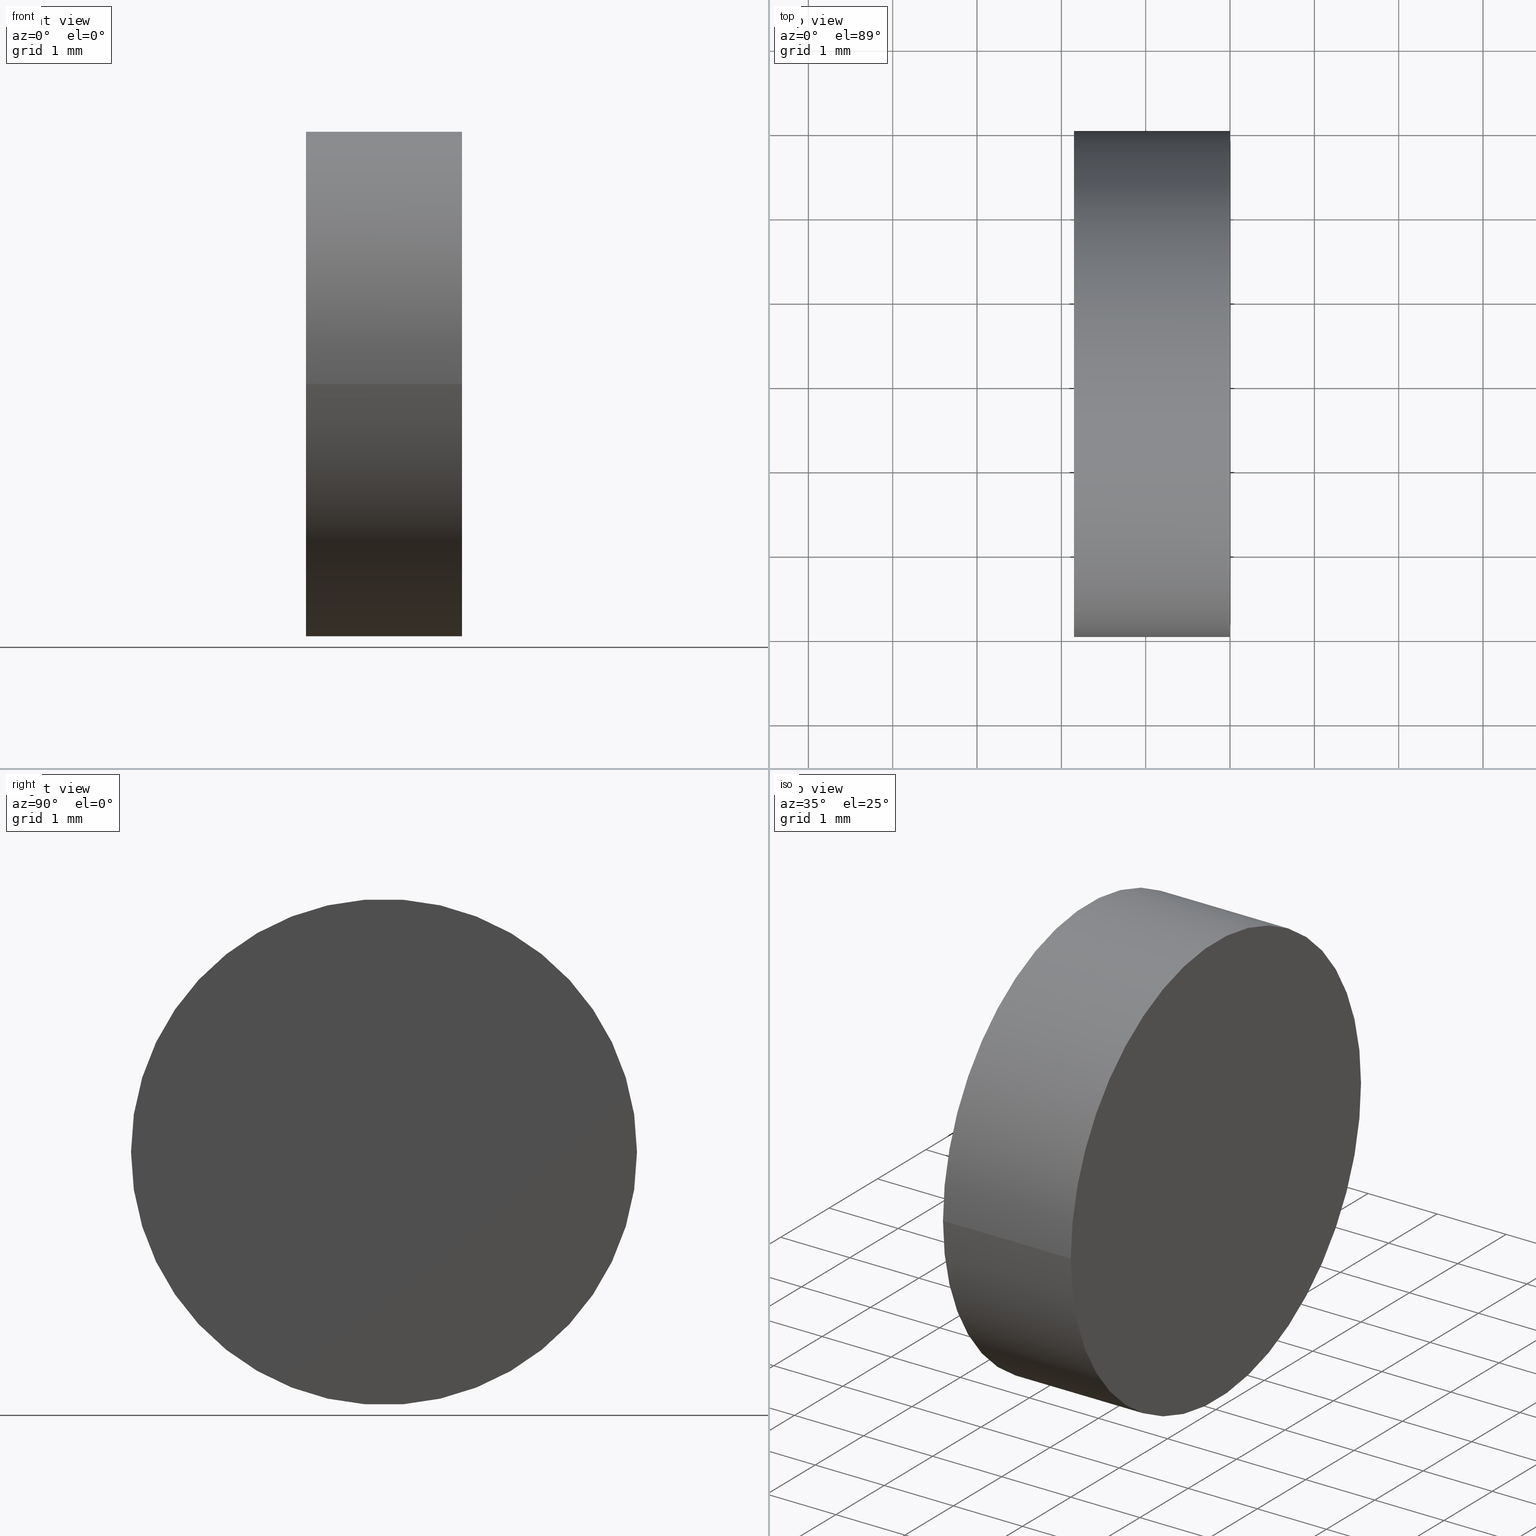
[diagram: canonical four-view strip — front | top / right | iso, engineering-drawing reading convention]
A machine part, canonical four-view strip (front | top / right | iso — engineering-drawing reading convention). The complete STEP part file that produces these views, byte-faithful:
ISO-10303-21;
HEADER;
FILE_DESCRIPTION (( 'STEP AP203' ),
    '1' );
FILE_NAME ('120351.STEP',
    '2024-05-10T06:28:03',
    ( '' ),
    ( '' ),
    'SwSTEP 2.0',
    'SolidWorks 2020',
    '' );
FILE_SCHEMA (( 'CONFIG_CONTROL_DESIGN' ));
ENDSEC;

DATA;
#1 = VERTEX_POINT ( 'NONE', #48 ) ;
#2 = CLOSED_SHELL ( 'NONE', ( #173, #61, #82, #21, #43 ) ) ;
#3 = CARTESIAN_POINT ( 'NONE',  ( -2.128896578136521379E-16, 3.000000000000000000, 0.000000000000000000 ) ) ;
#4 = CC_DESIGN_SECURITY_CLASSIFICATION ( #81, ( #175 ) ) ;
#5 = CARTESIAN_POINT ( 'NONE',  ( -14.40999213444168880, -1.765216662077961907E-15, 0.000000000000000000 ) ) ;
#6 = DESIGN_CONTEXT ( 'detailed design', #116, 'design' ) ;
#7 = CARTESIAN_POINT ( 'NONE',  ( -1.849999999999999645, -2.265596578422602607E-16, 0.000000000000000000 ) ) ;
#8 = EDGE_CURVE ( 'NONE', #113, #15, #107, .T. ) ;
#9 = CC_DESIGN_PERSON_AND_ORGANIZATION_ASSIGNMENT ( #179, #10, ( #192 ) ) ;
#10 = PERSON_AND_ORGANIZATION_ROLE ( 'creator' ) ;
#11 = DIRECTION ( 'NONE',  ( -1.445602896647338917E-16, 1.000000000000000000, 0.000000000000000000 ) ) ;
#12 = APPROVAL_DATE_TIME ( #166, #151 ) ;
#13 = ORIENTED_EDGE ( 'NONE', *, *, #60, .F. ) ;
#14 = AXIS2_PLACEMENT_3D ( 'NONE', #7, #177, #11 ) ;
#15 = VERTEX_POINT ( 'NONE', #97 ) ;
#16 = AXIS2_PLACEMENT_3D ( 'NONE', #187, #172, #169 ) ;
#17 = DIRECTION ( 'NONE',  ( 1.000000000000000000, 1.224646799147352961E-16, -0.000000000000000000 ) ) ;
#18 = ORIENTED_EDGE ( 'NONE', *, *, #137, .T. ) ;
#19 = CARTESIAN_POINT ( 'NONE',  ( -1.849999999999999201, -3.000000000000001776, 3.673940397442061840E-16 ) ) ;
#20 = PERSON_AND_ORGANIZATION ( #24, #132 ) ;
#21 = ADVANCED_FACE ( 'NONE', ( #170 ), #93, .T. ) ;
#22 = AXIS2_PLACEMENT_3D ( 'NONE', #186, #17, #109 ) ;
#23 = LOCAL_TIME ( 14, 28, 3.000000000000000000, #41 ) ;
#24 = PERSON ( 'δָ��', 'δָ��', 'δָ��', ('δָ��'), ('δָ��'), ('δָ��') ) ;
#25 = AXIS2_PLACEMENT_3D ( 'NONE', #37, #85, #58 ) ;
#26 = DATE_AND_TIME ( #73, #195 ) ;
#27 = ORIENTED_EDGE ( 'NONE', *, *, #84, .T. ) ;
#28 = DIRECTION ( 'NONE',  ( 1.000000000000000000, 1.224646799147352961E-16, -0.000000000000000000 ) ) ;
#29 = DIRECTION ( 'NONE',  ( 1.000000000000000000, 1.224646799147352961E-16, -0.000000000000000000 ) ) ;
#30 = DIRECTION ( 'NONE',  ( -1.224646799147352961E-16, 1.000000000000000000, 0.000000000000000000 ) ) ;
#31 = UNCERTAINTY_MEASURE_WITH_UNIT (LENGTH_MEASURE( 1.000000000000000082E-05 ), #144, 'distance_accuracy_value', 'NONE');
#32 = ORIENTED_EDGE ( 'NONE', *, *, #150, .F. ) ;
#33 = CC_DESIGN_APPROVAL ( #44, ( #192 ) ) ;
#34 = DATE_AND_TIME ( #72, #167 ) ;
#35 = APPROVAL_PERSON_ORGANIZATION ( #88, #44, #163 ) ;
#36 = PRODUCT ( '120351', '120351', '', ( #55 ) ) ;
#37 = CARTESIAN_POINT ( 'NONE',  ( 0.000000000000000000, 0.000000000000000000, 0.000000000000000000 ) ) ;
#38 = APPROVAL_ROLE ( '' ) ;
#39 = EDGE_LOOP ( 'NONE', ( #32, #79, #127 ) ) ;
#40 = APPROVAL_PERSON_ORGANIZATION ( #121, #174, #38 ) ;
#41 = COORDINATED_UNIVERSAL_TIME_OFFSET ( 8, 0, .AHEAD. ) ;
#42 = APPROVAL_STATUS ( 'not_yet_approved' ) ;
#43 = ADVANCED_FACE ( 'NONE', ( #65 ), #168, .T. ) ;
#44 = APPROVAL ( #117, 'δָ��' ) ;
#45 = DIRECTION ( 'NONE',  ( -1.224646799147352961E-16, 1.000000000000000000, 0.000000000000000000 ) ) ;
#46 = MANIFOLD_SOLID_BREP ( '��ת1', #2 ) ;
#47 = CARTESIAN_POINT ( 'NONE',  ( 0.000000000000000000, 0.000000000000000000, 0.000000000000000000 ) ) ;
#48 = CARTESIAN_POINT ( 'NONE',  ( 6.764028036053134381E-16, -3.000000000000000000, 3.673940397442059868E-16 ) ) ;
#49 = DIRECTION ( 'NONE',  ( -1.445602896647338917E-16, 1.000000000000000000, 0.000000000000000000 ) ) ;
#50 = CARTESIAN_POINT ( 'NONE',  ( 3.673940397442059375E-16, -3.000000000000000000, 3.673940397442059868E-16 ) ) ;
#51 = CIRCLE ( 'NONE', #154, 12.91000000000000547 ) ;
#52 = CALENDAR_DATE ( 2024, 10, 5 ) ;
#53 = CC_DESIGN_APPROVAL ( #174, ( #175 ) ) ;
#54 = CIRCLE ( 'NONE', #14, 3.000000000000000444 ) ;
#55 = MECHANICAL_CONTEXT ( 'NONE', #103, 'mechanical' ) ;
#56 = DATE_TIME_ROLE ( 'creation_date' ) ;
#57 = ORIENTED_EDGE ( 'NONE', *, *, #150, .T. ) ;
#58 = DIRECTION ( 'NONE',  ( -1.224646799147353207E-16, 1.000000000000000000, 0.000000000000000000 ) ) ;
#59 = AXIS2_PLACEMENT_3D ( 'NONE', #5, #188, #95 ) ;
#60 = EDGE_CURVE ( 'NONE', #77, #1, #185, .T. ) ;
#61 = ADVANCED_FACE ( 'NONE', ( #153 ), #128, .F. ) ;
#62 = CARTESIAN_POINT ( 'NONE',  ( -1.849999999999999645, -2.265596578422602607E-16, 0.000000000000000000 ) ) ;
#63 = EDGE_LOOP ( 'NONE', ( #141, #67 ) ) ;
#64 = ORIENTED_EDGE ( 'NONE', *, *, #118, .F. ) ;
#65 = FACE_OUTER_BOUND ( 'NONE', #63, .T. ) ;
#66 = LOCAL_TIME ( 14, 28, 3.000000000000000000, #87 ) ;
#67 = ORIENTED_EDGE ( 'NONE', *, *, #118, .T. ) ;
#68 = PRODUCT_RELATED_PRODUCT_CATEGORY ( 'detail', '', ( #36 ) ) ;
#69 = APPLICATION_PROTOCOL_DEFINITION ( 'international standard', 'config_control_design', 1994, #116 ) ;
#70 = AXIS2_PLACEMENT_3D ( 'NONE', #94, #158, #129 ) ;
#71 =( NAMED_UNIT ( * ) SI_UNIT ( $, .STERADIAN. ) SOLID_ANGLE_UNIT ( ) );
#72 = CALENDAR_DATE ( 2024, 10, 5 ) ;
#73 = CALENDAR_DATE ( 2024, 10, 5 ) ;
#74 = LOCAL_TIME ( 14, 28, 3.000000000000000000, #124 ) ;
#75 = CC_DESIGN_PERSON_AND_ORGANIZATION_ASSIGNMENT ( #200, #123, ( #81 ) ) ;
#76 = SHAPE_DEFINITION_REPRESENTATION ( #178, #183 ) ;
#77 = VERTEX_POINT ( 'NONE', #155 ) ;
#78 = FACE_OUTER_BOUND ( 'NONE', #39, .T. ) ;
#79 = ORIENTED_EDGE ( 'NONE', *, *, #84, .F. ) ;
#80 = CARTESIAN_POINT ( 'NONE',  ( -3.673940397442059375E-16, 3.000000000000000000, 0.000000000000000000 ) ) ;
#81 = SECURITY_CLASSIFICATION ( '', '', #149 ) ;
#82 = ADVANCED_FACE ( 'NONE', ( #78 ), #145, .F. ) ;
#83 = CARTESIAN_POINT ( 'NONE',  ( -14.40999213444168880, -1.765216662077961907E-15, 0.000000000000000000 ) ) ;
#84 = EDGE_CURVE ( 'NONE', #113, #201, #199, .T. ) ;
#85 = DIRECTION ( 'NONE',  ( 1.000000000000000000, 1.224646799147352961E-16, -0.000000000000000000 ) ) ;
#86 = AXIS2_PLACEMENT_3D ( 'NONE', #83, #140, #45 ) ;
#87 = COORDINATED_UNIVERSAL_TIME_OFFSET ( 8, 0, .AHEAD. ) ;
#88 = PERSON_AND_ORGANIZATION ( #24, #132 ) ;
#89 = DIRECTION ( 'NONE',  ( 1.000000000000000000, 1.224646799147352961E-16, -0.000000000000000000 ) ) ;
#90 = PERSON_AND_ORGANIZATION ( #24, #132 ) ;
#91 = APPROVAL_PERSON_ORGANIZATION ( #92, #151, #184 ) ;
#92 = PERSON_AND_ORGANIZATION ( #24, #132 ) ;
#93 = CYLINDRICAL_SURFACE ( 'NONE', #176, 3.000000000000000000 ) ;
#94 = CARTESIAN_POINT ( 'NONE',  ( 3.090087638611075992E-16, 3.784265935709856587E-32, 0.000000000000000000 ) ) ;
#95 = DIRECTION ( 'NONE',  ( -1.224646799147352961E-16, 1.000000000000000000, 0.000000000000000000 ) ) ;
#96 = LINE ( 'NONE', #80, #136 ) ;
#97 = CARTESIAN_POINT ( 'NONE',  ( -1.500000000000000000, -1.836970198721029688E-16, 0.000000000000000000 ) ) ;
#98 = PERSON_AND_ORGANIZATION_ROLE ( 'design_supplier' ) ;
#99 = CIRCLE ( 'NONE', #22, 3.000000000000000000 ) ;
#100 = CARTESIAN_POINT ( 'NONE',  ( 0.000000000000000000, 0.000000000000000000, 0.000000000000000000 ) ) ;
#101 = EDGE_CURVE ( 'NONE', #201, #1, #111, .T. ) ;
#102 = CC_DESIGN_PERSON_AND_ORGANIZATION_ASSIGNMENT ( #20, #120, ( #36 ) ) ;
#103 = APPLICATION_CONTEXT ( 'configuration controlled 3d designs of mechanical parts and assemblies' ) ;
#104 = CARTESIAN_POINT ( 'NONE',  ( -14.40999213444168880, -0.01425091764847305140, 1.745234068311288492E-18 ) ) ;
#105 = CC_DESIGN_APPROVAL ( #151, ( #81 ) ) ;
#106 = APPROVAL_DATE_TIME ( #131, #174 ) ;
#107 = CIRCLE ( 'NONE', #16, 12.91000000000000725 ) ;
#108 = CALENDAR_DATE ( 2024, 10, 5 ) ;
#109 = DIRECTION ( 'NONE',  ( -1.224646799147353207E-16, 1.000000000000000000, 0.000000000000000000 ) ) ;
#110 = EDGE_LOOP ( 'NONE', ( #27, #181, #13, #139 ) ) ;
#111 = LINE ( 'NONE', #50, #193 ) ;
#112 = CC_DESIGN_PERSON_AND_ORGANIZATION_ASSIGNMENT ( #115, #98, ( #175 ) ) ;
#113 = VERTEX_POINT ( 'NONE', #171 ) ;
#114 = AXIS2_PLACEMENT_3D ( 'NONE', #62, #189, #49 ) ;
#115 = PERSON_AND_ORGANIZATION ( #24, #132 ) ;
#116 = APPLICATION_CONTEXT ( 'configuration controlled 3d designs of mechanical parts and assemblies' ) ;
#117 = APPROVAL_STATUS ( 'not_yet_approved' ) ;
#118 = EDGE_CURVE ( 'NONE', #1, #77, #99, .T. ) ;
#119 = CC_DESIGN_PERSON_AND_ORGANIZATION_ASSIGNMENT ( #90, #194, ( #175 ) ) ;
#120 = PERSON_AND_ORGANIZATION_ROLE ( 'design_owner' ) ;
#121 = PERSON_AND_ORGANIZATION ( #24, #132 ) ;
#122 = CALENDAR_DATE ( 2024, 10, 5 ) ;
#123 = PERSON_AND_ORGANIZATION_ROLE ( 'classification_officer' ) ;
#124 = COORDINATED_UNIVERSAL_TIME_OFFSET ( 8, 0, .AHEAD. ) ;
#125 = DIRECTION ( 'NONE',  ( 1.000000000000000000, 1.224646799147352961E-16, -0.000000000000000000 ) ) ;
#126 = AXIS2_PLACEMENT_3D ( 'NONE', #100, #146, #162 ) ;
#127 = ORIENTED_EDGE ( 'NONE', *, *, #8, .T. ) ;
#128 = TOROIDAL_SURFACE ( 'NONE', #86, 0.01425091764847128718, 12.91000000000000547 ) ;
#129 = DIRECTION ( 'NONE',  ( -1.224646799147353207E-16, 1.000000000000000000, 0.000000000000000000 ) ) ;
#130 = EDGE_LOOP ( 'NONE', ( #143, #57, #190 ) ) ;
#131 = DATE_AND_TIME ( #52, #23 ) ;
#132 = ORGANIZATION ( 'δָ��', 'δָ��', '' ) ;
#133 =( NAMED_UNIT ( * ) PLANE_ANGLE_UNIT ( ) SI_UNIT ( $, .RADIAN. ) );
#134 = COORDINATED_UNIVERSAL_TIME_OFFSET ( 8, 0, .AHEAD. ) ;
#135 = DATE_TIME_ROLE ( 'classification_date' ) ;
#136 = VECTOR ( 'NONE', #89, 1000.000000000000000 ) ;
#137 = EDGE_CURVE ( 'NONE', #113, #77, #96, .T. ) ;
#138 = CC_DESIGN_DATE_AND_TIME_ASSIGNMENT ( #26, #135, ( #81 ) ) ;
#139 = ORIENTED_EDGE ( 'NONE', *, *, #137, .F. ) ;
#140 = DIRECTION ( 'NONE',  ( 1.000000000000000000, 1.224646799147352961E-16, -0.000000000000000000 ) ) ;
#141 = ORIENTED_EDGE ( 'NONE', *, *, #60, .T. ) ;
#142 = ORIENTED_EDGE ( 'NONE', *, *, #191, .T. ) ;
#143 = ORIENTED_EDGE ( 'NONE', *, *, #191, .F. ) ;
#144 =( LENGTH_UNIT ( ) NAMED_UNIT ( * ) SI_UNIT ( .MILLI., .METRE. ) );
#145 = TOROIDAL_SURFACE ( 'NONE', #59, 0.01425091764847128718, 12.91000000000000547 ) ;
#146 = DIRECTION ( 'NONE',  ( 0.000000000000000000, 0.000000000000000000, 1.000000000000000000 ) ) ;
#147 = DIRECTION ( 'NONE',  ( -1.499759782661857334E-32, 1.224646799147353207E-16, 1.000000000000000000 ) ) ;
#148 = COORDINATED_UNIVERSAL_TIME_OFFSET ( 8, 0, .AHEAD. ) ;
#149 = SECURITY_CLASSIFICATION_LEVEL ( 'unclassified' ) ;
#150 = EDGE_CURVE ( 'NONE', #201, #15, #51, .T. ) ;
#151 = APPROVAL ( #42, 'δָ��' ) ;
#152 = ORIENTED_EDGE ( 'NONE', *, *, #101, .F. ) ;
#153 = FACE_OUTER_BOUND ( 'NONE', #130, .T. ) ;
#154 = AXIS2_PLACEMENT_3D ( 'NONE', #104, #147, #165 ) ;
#155 = CARTESIAN_POINT ( 'NONE',  ( -5.838527588309833832E-17, 3.000000000000000000, 0.000000000000000000 ) ) ;
#156 = DIRECTION ( 'NONE',  ( -1.224646799147353207E-16, 1.000000000000000000, 0.000000000000000000 ) ) ;
#157 = AXIS2_PLACEMENT_3D ( 'NONE', #3, #28, #30 ) ;
#158 = DIRECTION ( 'NONE',  ( 1.000000000000000000, 1.224646799147352961E-16, -0.000000000000000000 ) ) ;
#159 =( GEOMETRIC_REPRESENTATION_CONTEXT ( 3 ) GLOBAL_UNCERTAINTY_ASSIGNED_CONTEXT ( ( #31 ) ) GLOBAL_UNIT_ASSIGNED_CONTEXT ( ( #144, #133, #71 ) ) REPRESENTATION_CONTEXT ( 'NONE', 'WORKASPACE' ) );
#160 = APPROVAL_DATE_TIME ( #198, #44 ) ;
#161 = CC_DESIGN_DATE_AND_TIME_ASSIGNMENT ( #34, #56, ( #192 ) ) ;
#162 = DIRECTION ( 'NONE',  ( 1.000000000000000000, 0.000000000000000000, 0.000000000000000000 ) ) ;
#163 = APPROVAL_ROLE ( '' ) ;
#164 = EDGE_LOOP ( 'NONE', ( #152, #142, #18, #64 ) ) ;
#165 = DIRECTION ( 'NONE',  ( 0.000000000000000000, -1.000000000000000000, 1.224646799147353207E-16 ) ) ;
#166 = DATE_AND_TIME ( #108, #74 ) ;
#167 = LOCAL_TIME ( 14, 28, 3.000000000000000000, #134 ) ;
#168 = PLANE ( 'NONE',  #157 ) ;
#169 = DIRECTION ( 'NONE',  ( -1.000000000000000000, 0.000000000000000000, 0.000000000000000000 ) ) ;
#170 = FACE_OUTER_BOUND ( 'NONE', #164, .T. ) ;
#171 = CARTESIAN_POINT ( 'NONE',  ( -1.849999999999999645, 3.000000000000001332, 0.000000000000000000 ) ) ;
#172 = DIRECTION ( 'NONE',  ( -0.000000000000000000, 0.000000000000000000, -1.000000000000000000 ) ) ;
#173 = ADVANCED_FACE ( 'NONE', ( #182 ), #196, .T. ) ;
#174 = APPROVAL ( #180, 'δָ��' ) ;
#175 = PRODUCT_DEFINITION_FORMATION_WITH_SPECIFIED_SOURCE ( '�κ�', '', #36, .NOT_KNOWN. ) ;
#176 = AXIS2_PLACEMENT_3D ( 'NONE', #47, #29, #156 ) ;
#177 = DIRECTION ( 'NONE',  ( 1.000000000000000000, 1.224646799147352961E-16, -0.000000000000000000 ) ) ;
#178 = PRODUCT_DEFINITION_SHAPE ( 'NONE', 'NONE',  #192 ) ;
#179 = PERSON_AND_ORGANIZATION ( #24, #132 ) ;
#180 = APPROVAL_STATUS ( 'not_yet_approved' ) ;
#181 = ORIENTED_EDGE ( 'NONE', *, *, #101, .T. ) ;
#182 = FACE_OUTER_BOUND ( 'NONE', #110, .T. ) ;
#183 = ADVANCED_BREP_SHAPE_REPRESENTATION ( '120351', ( #46, #126 ), #159 ) ;
#184 = APPROVAL_ROLE ( '' ) ;
#185 = CIRCLE ( 'NONE', #70, 3.000000000000000000 ) ;
#186 = CARTESIAN_POINT ( 'NONE',  ( 3.090087638611075992E-16, 3.784265935709856587E-32, 0.000000000000000000 ) ) ;
#187 = CARTESIAN_POINT ( 'NONE',  ( -14.40999213444168880, 0.01425091764846952123, 0.000000000000000000 ) ) ;
#188 = DIRECTION ( 'NONE',  ( 1.000000000000000000, 1.224646799147352961E-16, -0.000000000000000000 ) ) ;
#189 = DIRECTION ( 'NONE',  ( 1.000000000000000000, 1.224646799147352961E-16, -0.000000000000000000 ) ) ;
#190 = ORIENTED_EDGE ( 'NONE', *, *, #8, .F. ) ;
#191 = EDGE_CURVE ( 'NONE', #201, #113, #54, .T. ) ;
#192 = PRODUCT_DEFINITION ( 'δ֪', '', #175, #6 ) ;
#193 = VECTOR ( 'NONE', #125, 1000.000000000000000 ) ;
#194 = PERSON_AND_ORGANIZATION_ROLE ( 'creator' ) ;
#195 = LOCAL_TIME ( 14, 28, 3.000000000000000000, #148 ) ;
#196 = CYLINDRICAL_SURFACE ( 'NONE', #25, 3.000000000000000000 ) ;
#197 = APPLICATION_PROTOCOL_DEFINITION ( 'international standard', 'config_control_design', 1994, #103 ) ;
#198 = DATE_AND_TIME ( #122, #66 ) ;
#199 = CIRCLE ( 'NONE', #114, 3.000000000000000444 ) ;
#200 = PERSON_AND_ORGANIZATION ( #24, #132 ) ;
#201 = VERTEX_POINT ( 'NONE', #19 ) ;
ENDSEC;
END-ISO-10303-21;
